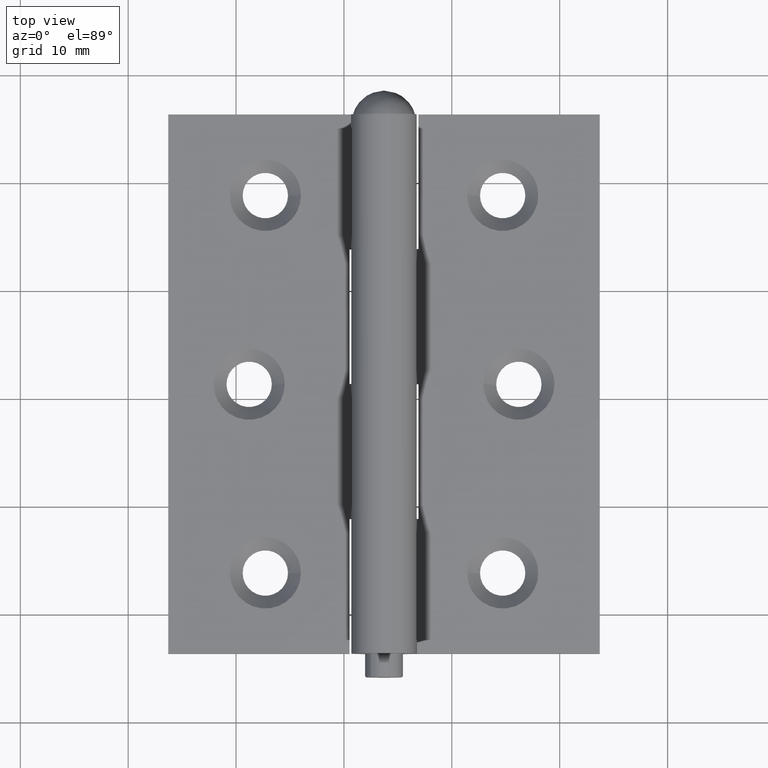
[diagram: clean part render]
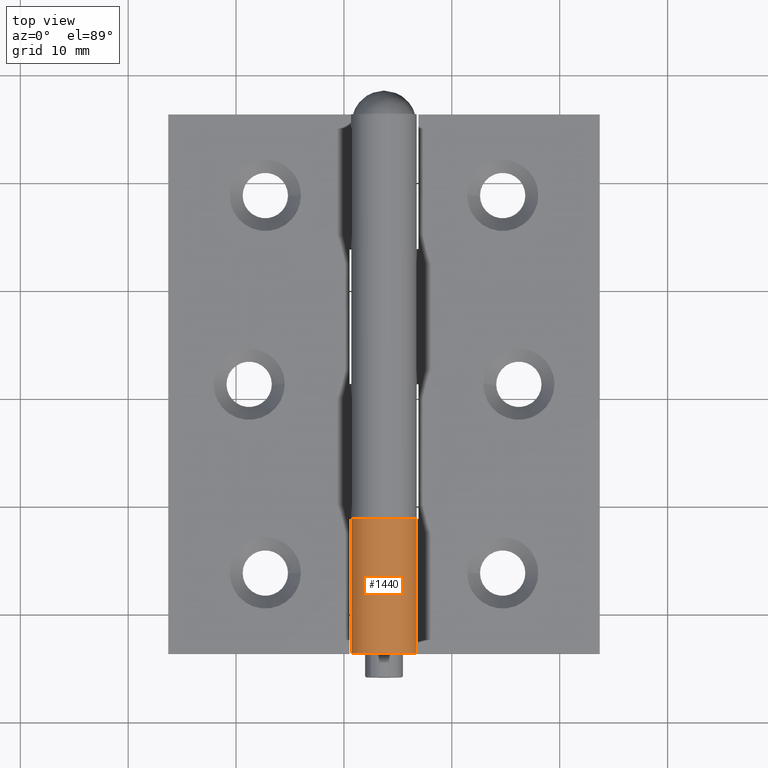
[diagram: same view with one face highlighted and labeled with its STEP entity id]
A machine part, top view. The second image highlights one B-rep face of the part: STEP entity #1440.
In plain terms, the highlighted cylindrical surface (edge-blend (fillet) strip) has radius 3.05 mm, axis along (0, 1, -0).
Its self-contained STEP definition (entity closure, byte-faithful):
#13 = VERTEX_POINT ( 'NONE', #5082 ) ;
#273 = DIRECTION ( 'NONE',  ( -0.000000000000000000, -1.000000000000000000, -0.000000000000000000 ) ) ;
#620 = CARTESIAN_POINT ( 'NONE',  ( -2.124041326597350121, 25.00000000000000000, -2.188823529411764390 ) ) ;
#686 = AXIS2_PLACEMENT_3D ( 'NONE', #7925, #9579, #1313 ) ;
#830 = LINE ( 'NONE', #620, #1358 ) ;
#887 = CARTESIAN_POINT ( 'NONE',  ( -2.124041326597350121, 25.00000000000000000, -2.188823529411764390 ) ) ;
#934 = EDGE_CURVE ( 'NONE', #8637, #13, #2694, .T. ) ;
#1236 = CIRCLE ( 'NONE', #686, 3.050000000000000266 ) ;
#1313 = DIRECTION ( 'NONE',  ( -1.000000000000000000, 0.000000000000000000, 0.000000000000000000 ) ) ;
#1323 = ORIENTED_EDGE ( 'NONE', *, *, #3784, .T. ) ;
#1358 = VECTOR ( 'NONE', #5684, 1000.000000000000000 ) ;
#1440 = ADVANCED_FACE ( 'NONE', ( #10306 ), #7976, .T. ) ;
#1533 = VECTOR ( 'NONE', #10758, 1000.000000000000000 ) ;
#1994 = DIRECTION ( 'NONE',  ( 0.000000000000000000, 0.000000000000000000, 1.000000000000000000 ) ) ;
#2193 = EDGE_CURVE ( 'NONE', #8637, #5446, #6364, .T. ) ;
#2484 = CARTESIAN_POINT ( 'NONE',  ( -2.124041326597350121, 12.49999999999999645, -2.188823529411764390 ) ) ;
#2694 = LINE ( 'NONE', #9982, #1533 ) ;
#2841 = VERTEX_POINT ( 'NONE', #2484 ) ;
#3124 = CARTESIAN_POINT ( 'NONE',  ( -2.999999999999999556, 25.00000000000000000, -0.5500000000000020428 ) ) ;
#3582 = ORIENTED_EDGE ( 'NONE', *, *, #934, .T. ) ;
#3649 = EDGE_LOOP ( 'NONE', ( #1323, #7431, #5642, #3582 ) ) ;
#3784 = EDGE_CURVE ( 'NONE', #13, #2841, #1236, .T. ) ;
#4474 = EDGE_CURVE ( 'NONE', #5446, #2841, #830, .T. ) ;
#5082 = CARTESIAN_POINT ( 'NONE',  ( -2.999999999999999556, 12.49999999999999645, -0.5500000000000020428 ) ) ;
#5446 = VERTEX_POINT ( 'NONE', #887 ) ;
#5642 = ORIENTED_EDGE ( 'NONE', *, *, #2193, .F. ) ;
#5684 = DIRECTION ( 'NONE',  ( -0.000000000000000000, -1.000000000000000000, -0.000000000000000000 ) ) ;
#6364 = CIRCLE ( 'NONE', #7499, 3.050000000000000266 ) ;
#7431 = ORIENTED_EDGE ( 'NONE', *, *, #4474, .F. ) ;
#7499 = AXIS2_PLACEMENT_3D ( 'NONE', #9544, #7888, #1994 ) ;
#7712 = DIRECTION ( 'NONE',  ( 0.000000000000000000, 0.000000000000000000, -1.000000000000000000 ) ) ;
#7888 = DIRECTION ( 'NONE',  ( 0.000000000000000000, 1.000000000000000000, 0.000000000000000000 ) ) ;
#7925 = CARTESIAN_POINT ( 'NONE',  ( 0.000000000000000000, 12.49999999999999645, 0.000000000000000000 ) ) ;
#7976 = CYLINDRICAL_SURFACE ( 'NONE', #9990, 3.050000000000000266 ) ;
#8637 = VERTEX_POINT ( 'NONE', #3124 ) ;
#9544 = CARTESIAN_POINT ( 'NONE',  ( 0.000000000000000000, 25.00000000000000000, 0.000000000000000000 ) ) ;
#9579 = DIRECTION ( 'NONE',  ( -1.156482317317871478E-16, 1.000000000000000000, 0.000000000000000000 ) ) ;
#9982 = CARTESIAN_POINT ( 'NONE',  ( -2.999999999999999556, 25.00000000000000000, -0.5500000000000020428 ) ) ;
#9990 = AXIS2_PLACEMENT_3D ( 'NONE', #10220, #273, #7712 ) ;
#10220 = CARTESIAN_POINT ( 'NONE',  ( 0.000000000000000000, 25.00000000000000000, 0.000000000000000000 ) ) ;
#10306 = FACE_OUTER_BOUND ( 'NONE', #3649, .T. ) ;
#10758 = DIRECTION ( 'NONE',  ( -0.000000000000000000, -1.000000000000000000, -0.000000000000000000 ) ) ;